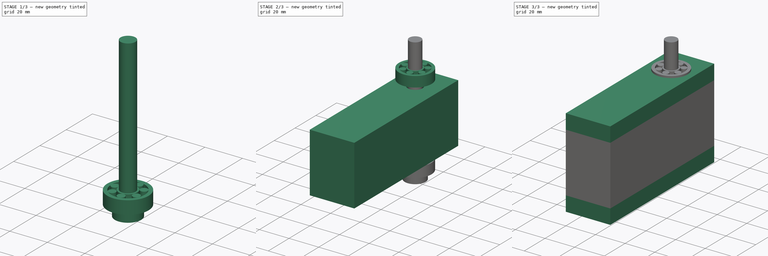
[diagram: build sequence overview — one tinted view per stage of 3, left to right]
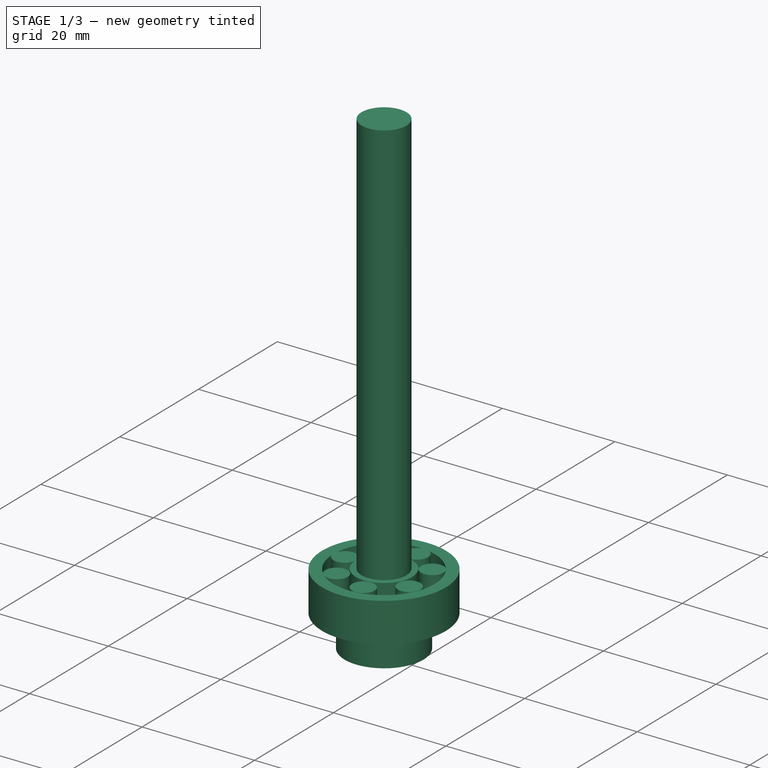
[diagram: stage 1 of 3 — iso view after this stage's code; geometry added in this stage tinted green]
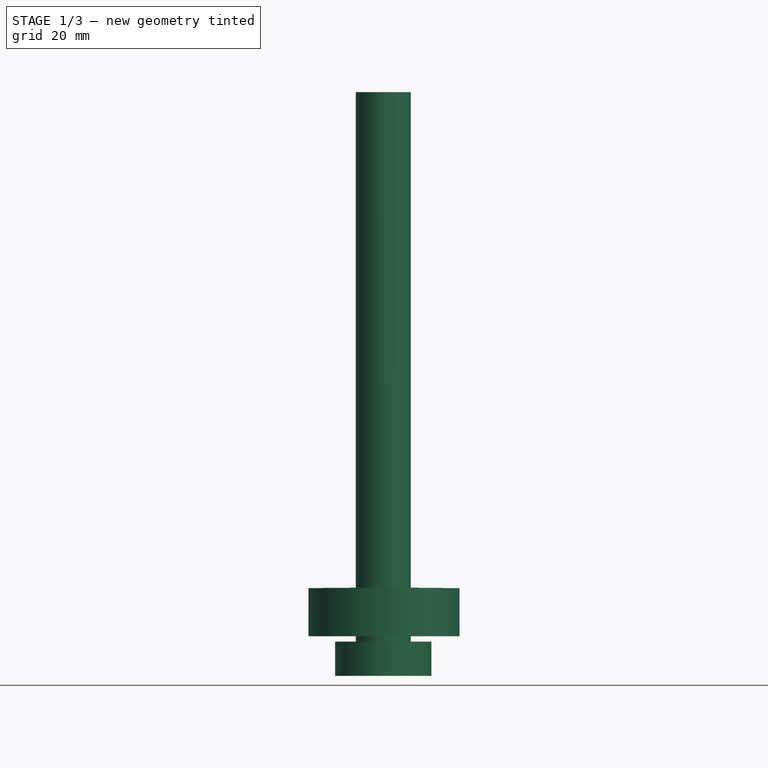
[diagram: stage 1 of 3 — front view after this stage's code; geometry added in this stage tinted green]
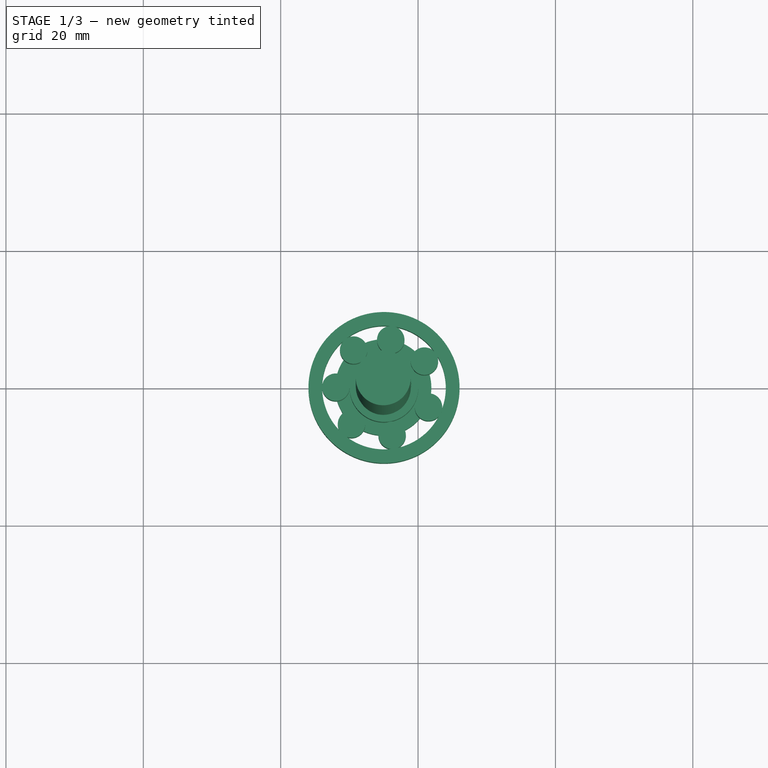
[diagram: stage 1 of 3 — top view after this stage's code; geometry added in this stage tinted green]
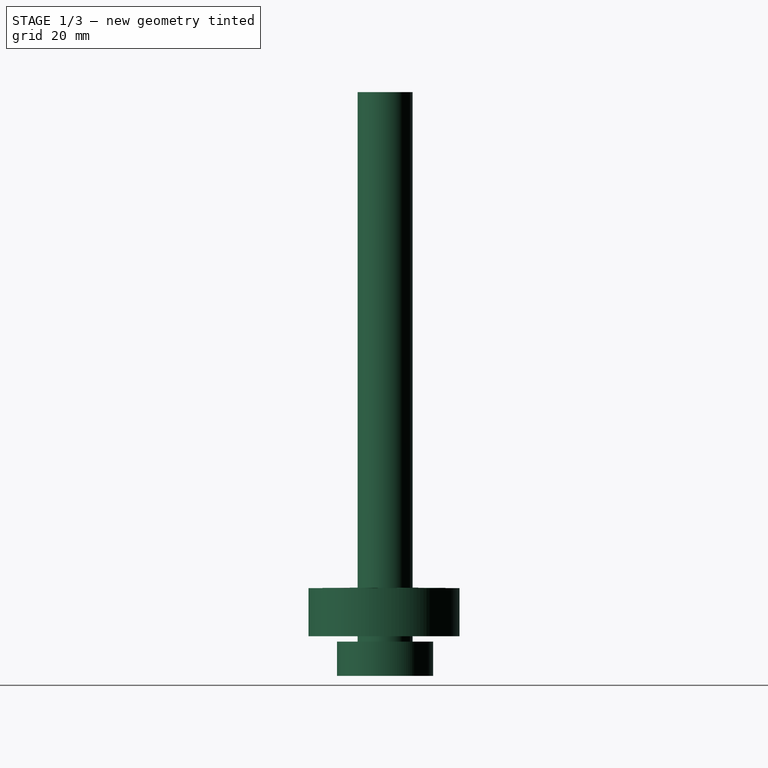
[diagram: stage 1 of 3 — right view after this stage's code; geometry added in this stage tinted green]
FCSTD DOCUMENT  (FreeCAD 0.19R24276 (Git))
Label: Opora_rolik_3
License: All rights reserved
LicenseURL: http://en.wikipedia.org/wiki/All_rights_reserved
objects: Sketcher::SketchObject×3, PartDesign::Pad×3, Part::FeaturePython×3, PartDesign::Body×1
note: 13 computed .brp shape members not serialized (recipe doc carries the construction recipe); baked Part::Feature solids carry a one-line shape summary decoded from their .brp

FEATURE [Part::FeaturePython] b_Sborka_podshipnik_22x8x7_1_001_001  label="Sborka_podshipnik_22x8x7_1_002"  # a2plus imported part (geometry in sourceFile) (typed FeaturePython)
  Placement = pos=(15.0416,79.939,-11.5144) rot=(0,0,1;0rad)
  a2p_Version = V0.1
  fixedPosition = false
  objectType = a2pPart
  sourceFile = .\Sborka_podshipnik_22x8x7_1.FCStd
  subassemblyImport = true
  timeLastImport = 1.6409e+09
  updateColors = true
FEATURE [Part::FeaturePython] b_M8_80_1_001_  label="M8_80_1_001"  # a2plus imported part (geometry in sourceFile) (typed FeaturePython)
  Placement = pos=(14.9341,80.1015,68.4321) rot=(0,1,0;3.14159rad)
  a2p_Version = V0.1
  fixedPosition = false
  objectType = a2pPart
  sourceFile = .\M8_80_1.FCStd
  subassemblyImport = false
  timeLastImport = 1.6409e+09
  updateColors = true
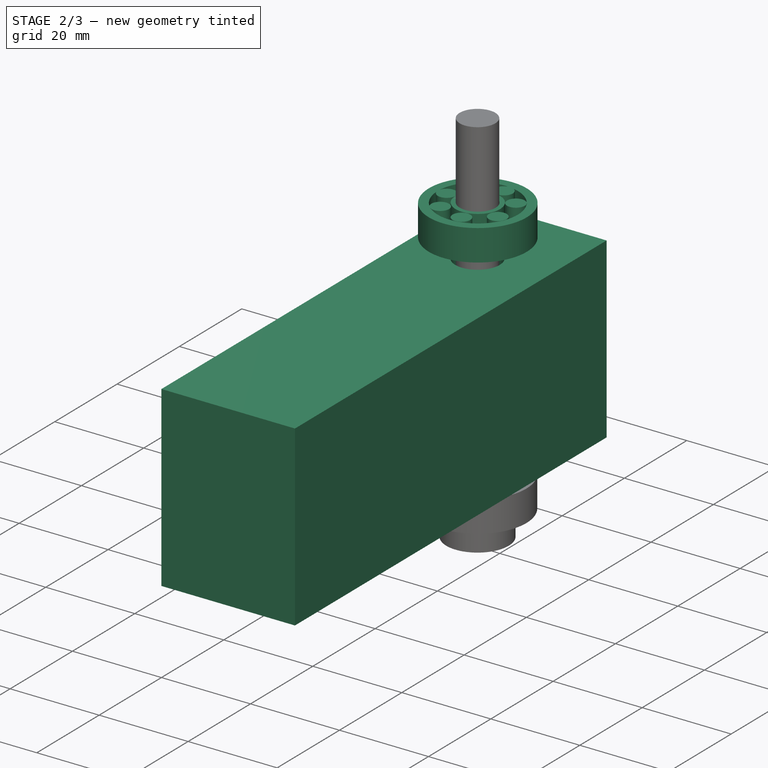
[diagram: stage 2 of 3 — iso view after this stage's code; geometry added in this stage tinted green]
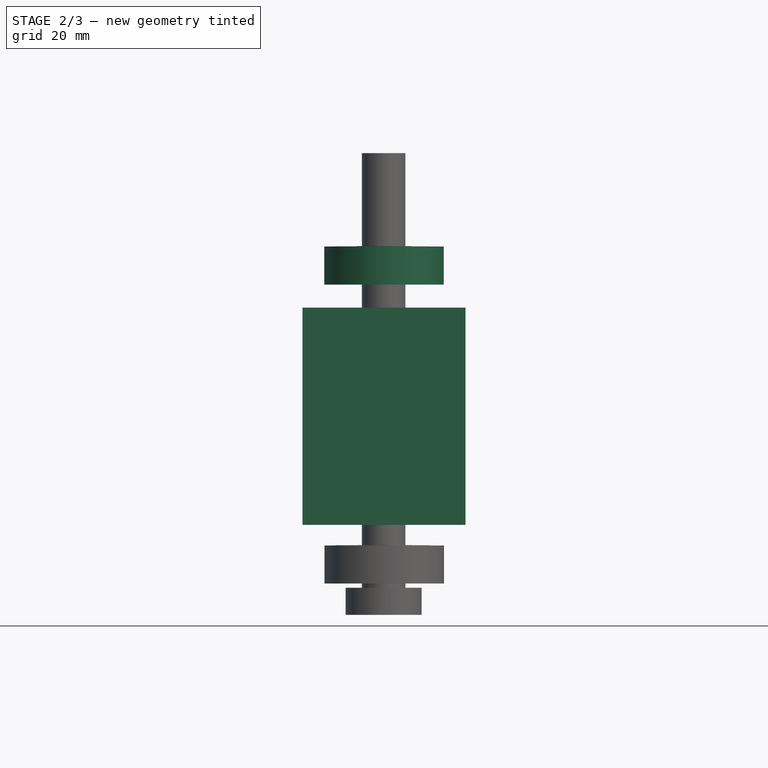
[diagram: stage 2 of 3 — front view after this stage's code; geometry added in this stage tinted green]
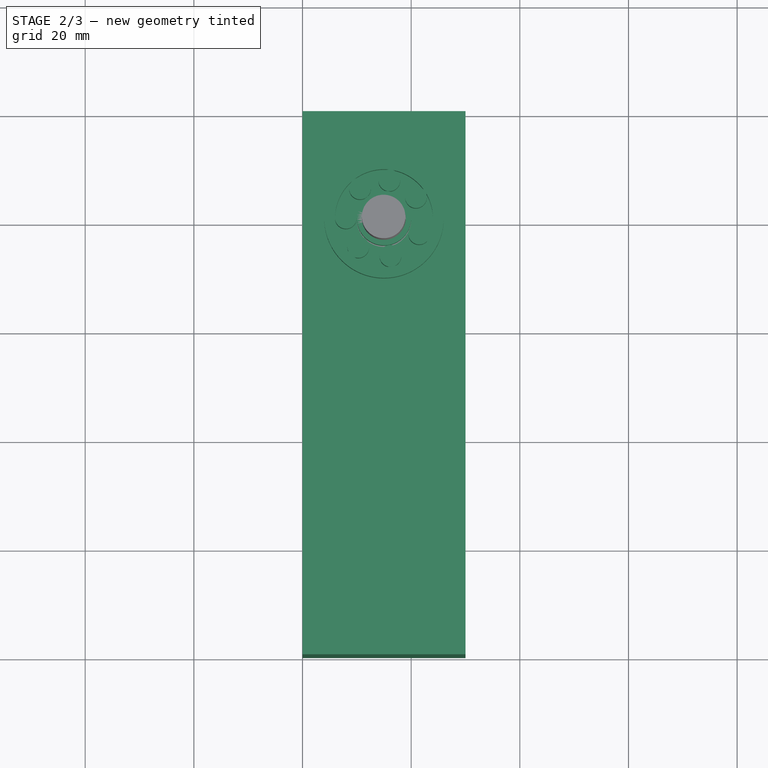
[diagram: stage 2 of 3 — top view after this stage's code; geometry added in this stage tinted green]
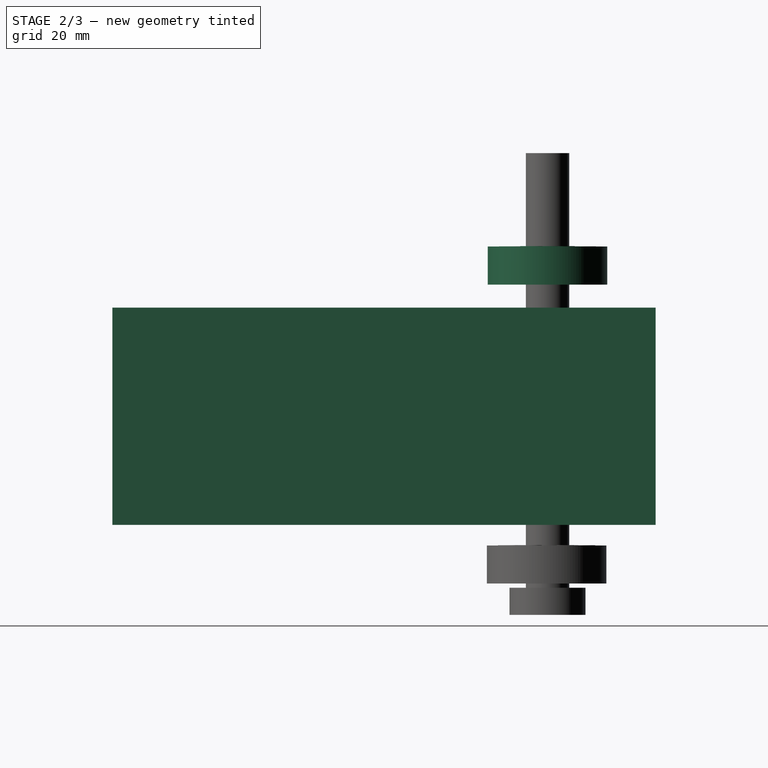
[diagram: stage 2 of 3 — right view after this stage's code; geometry added in this stage tinted green]
FEATURE [Sketcher::SketchObject] Sketch
  FullyConstrained = false
  MapMode = 5
  Support = -> [XY_Plane]
  sketch-geometry (5):
    g0: LineSegment StartX=0 StartY=0 StartZ=0 EndX=30 EndY=0 EndZ=0
    g1: LineSegment StartX=30 StartY=0 StartZ=0 EndX=30 EndY=100 EndZ=0
    g2: LineSegment StartX=30 StartY=100 StartZ=0 EndX=0 EndY=100 EndZ=0
    g3: LineSegment StartX=0 StartY=100 StartZ=0 EndX=0 EndY=0 EndZ=0
    g4: Circle CenterX=15 CenterY=80 CenterZ=0 NormalX=0 NormalY=0 NormalZ=1 AngleXU=0 Radius=5
  constraints (11):
    c: Coincident(g0,g1)
    c: Coincident(g1,g2)
    c: Coincident(g2,g3)
    c: Horizontal(g0)
    c: Horizontal(g2)
    c: Vertical(g1)
    c: Vertical(g3)
    c: DistanceY(g1,g1) = 100
    c: Distance(g0) = 30
    c: Diameter(g4) = 10
    c: DistanceY(g0,g4) = 80
FEATURE [PartDesign::Pad] Pad
  Direction = (1,1,1)
  Length = 40
  Length2 = 100
  Profile = -> Sketch
  Type = 0
FEATURE [PartDesign::Body] Body
  Group = -> [Sketch,Pad,Sketch001,Pad001,Sketch002,Pad002]
  Origin = -> Origin
  Tip = -> Pad002
FEATURE [Part::FeaturePython] b_Sborka_podshipnik_22x8x7_1_001_  label="Sborka_podshipnik_22x8x7_1_001"  # a2plus imported part (geometry in sourceFile) (typed FeaturePython)
  Placement = pos=(15,80.1,43.5) rot=(0,0,1;0rad)
  a2p_Version = V0.1
  fixedPosition = true
  objectType = a2pPart
  sourceFile = .\Sborka_podshipnik_22x8x7_1.FCStd
  subassemblyImport = true
  timeLastImport = 1.6409e+09
  updateColors = true
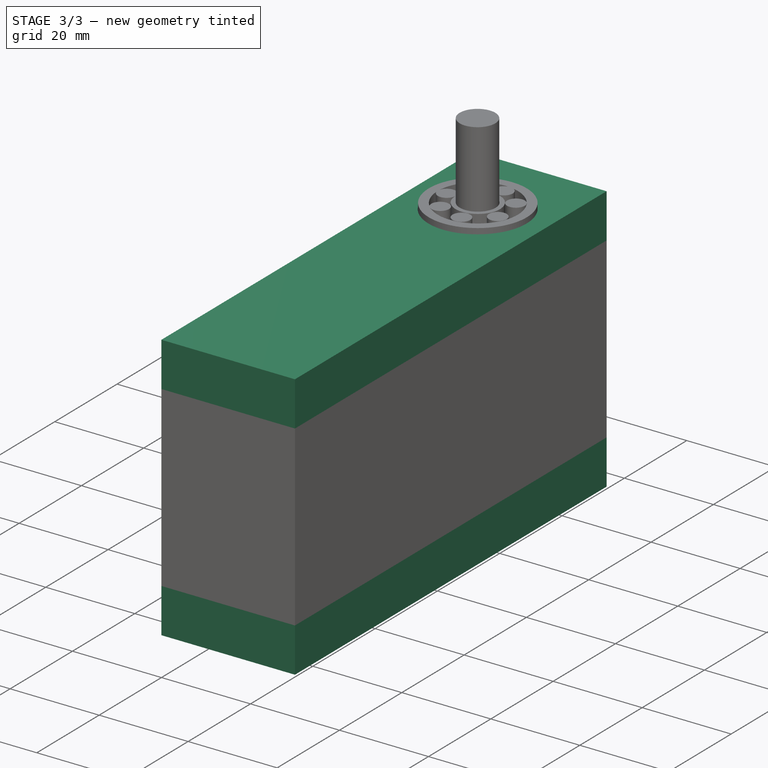
[diagram: stage 3 of 3 — iso view after this stage's code; geometry added in this stage tinted green]
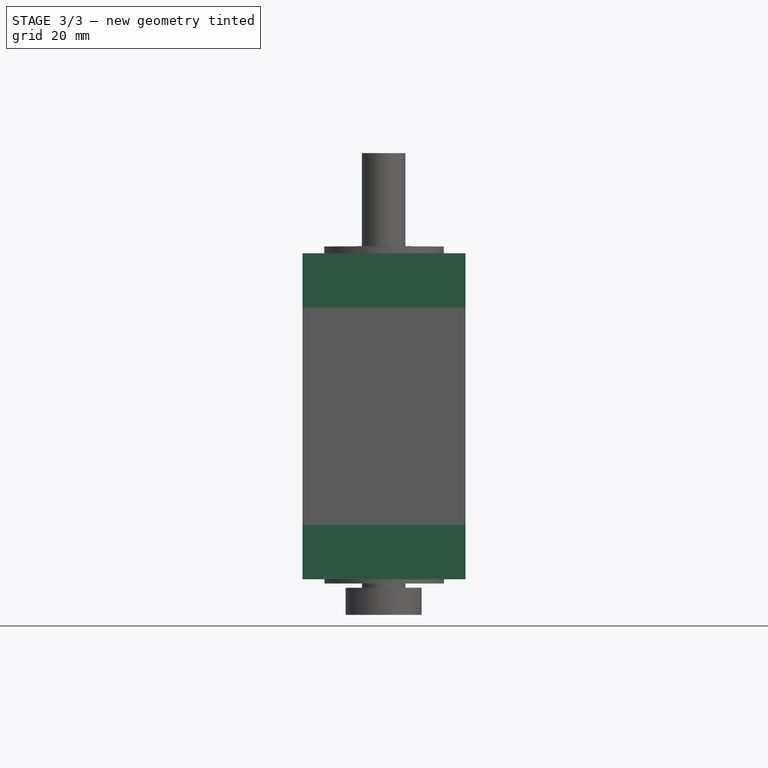
[diagram: stage 3 of 3 — front view after this stage's code; geometry added in this stage tinted green]
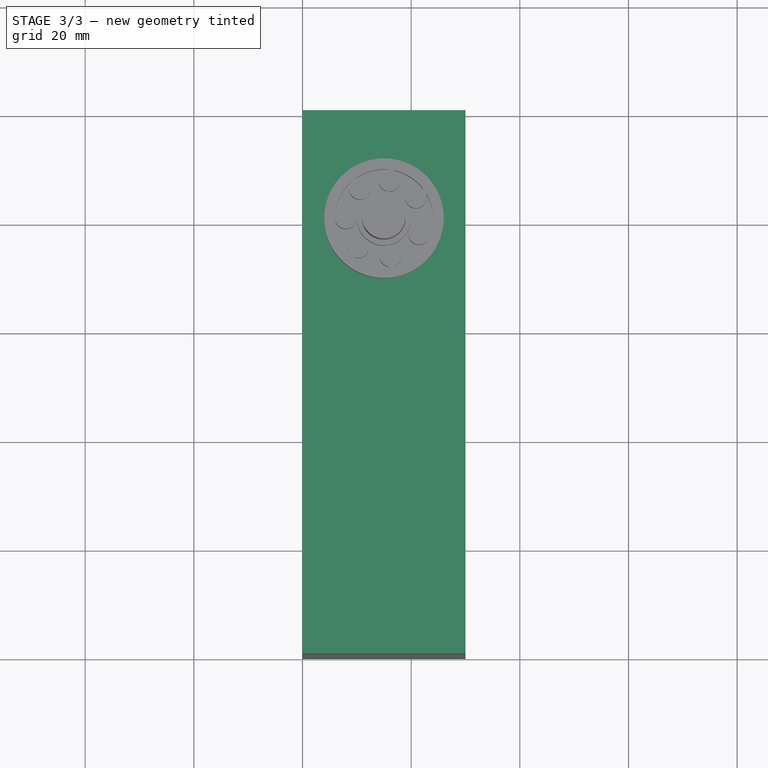
[diagram: stage 3 of 3 — top view after this stage's code; geometry added in this stage tinted green]
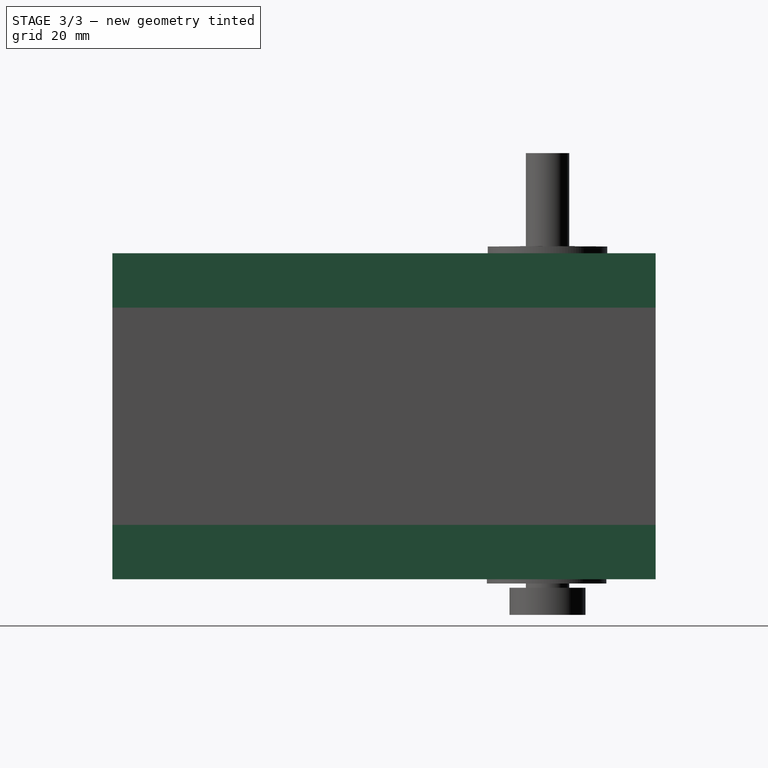
[diagram: stage 3 of 3 — right view after this stage's code; geometry added in this stage tinted green]
FEATURE [Sketcher::SketchObject] Sketch001
  FullyConstrained = false
  MapMode = 5
  Placement = pos=(0,0,40) rot=(0,0,1;0rad)
  Support = -> [Pad]
  sketch-geometry (5):
    g0: LineSegment StartX=0 StartY=0 StartZ=0 EndX=30 EndY=0 EndZ=0
    g1: LineSegment StartX=30 StartY=0 StartZ=0 EndX=30 EndY=100 EndZ=0
    g2: LineSegment StartX=30 StartY=100 StartZ=0 EndX=0 EndY=100 EndZ=0
    g3: LineSegment StartX=0 StartY=100 StartZ=0 EndX=0 EndY=0 EndZ=0
    g4: Circle CenterX=15 CenterY=80 CenterZ=0 NormalX=0 NormalY=0 NormalZ=1 AngleXU=0 Radius=11
  constraints (10):
    c: Coincident(g0,g1)
    c: Coincident(g1,g2)
    c: Coincident(g2,g3)
    c: Horizontal(g0)
    c: Horizontal(g2)
    c: Vertical(g1)
    c: Vertical(g3)
    c: Distance(g1) = 100
    c: Distance(g2) = 30
    c: Diameter(g4) = 22
FEATURE [PartDesign::Pad] Pad001
  BaseFeature = -> Pad
  Direction = (1,1,1)
  Length = 10
  Length2 = 100
  Profile = -> Sketch001
  Type = 0
FEATURE [Sketcher::SketchObject] Sketch002
  FullyConstrained = false
  MapMode = 5
  Placement = pos=(0,0,0) rot=(1,0,0;3.14159rad)
  Support = -> [Pad001]
  sketch-geometry (5):
    g0: LineSegment StartX=0 StartY=0 StartZ=0 EndX=30 EndY=0 EndZ=0
    g1: LineSegment StartX=30 StartY=0 StartZ=0 EndX=30 EndY=-100 EndZ=0
    g2: LineSegment StartX=30 StartY=-100 StartZ=0 EndX=0 EndY=-100 EndZ=0
    g3: LineSegment StartX=0 StartY=-100 StartZ=0 EndX=0 EndY=0 EndZ=0
    g4: Circle CenterX=15 CenterY=-80 CenterZ=0 NormalX=0 NormalY=0 NormalZ=1 AngleXU=0 Radius=11
  constraints (10):
    c: Coincident(g0,g1)
    c: Coincident(g1,g2)
    c: Coincident(g2,g3)
    c: Horizontal(g0)
    c: Horizontal(g2)
    c: Vertical(g1)
    c: Vertical(g3)
    c: Distance(g1) = 100
    c: Distance(g2) = 30
    c: Diameter(g4) = 22
FEATURE [PartDesign::Pad] Pad002
  BaseFeature = -> Pad001
  Direction = (1,1,1)
  Length = 10
  Length2 = 100
  Profile = -> Sketch002
  Type = 0
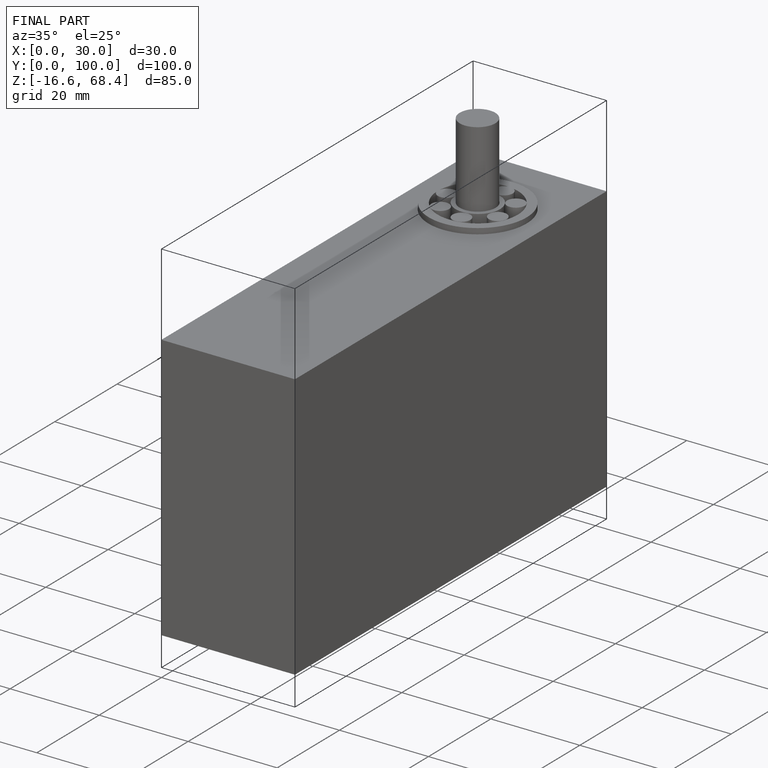
[diagram: finished part — iso view with bounding-box wireframe]
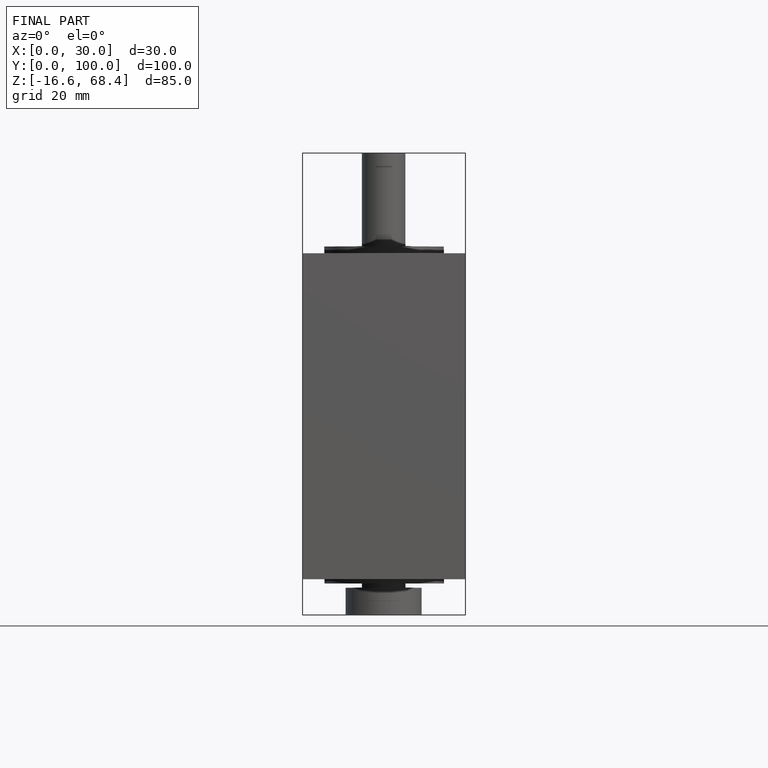
[diagram: finished part — front view with bounding-box wireframe]
